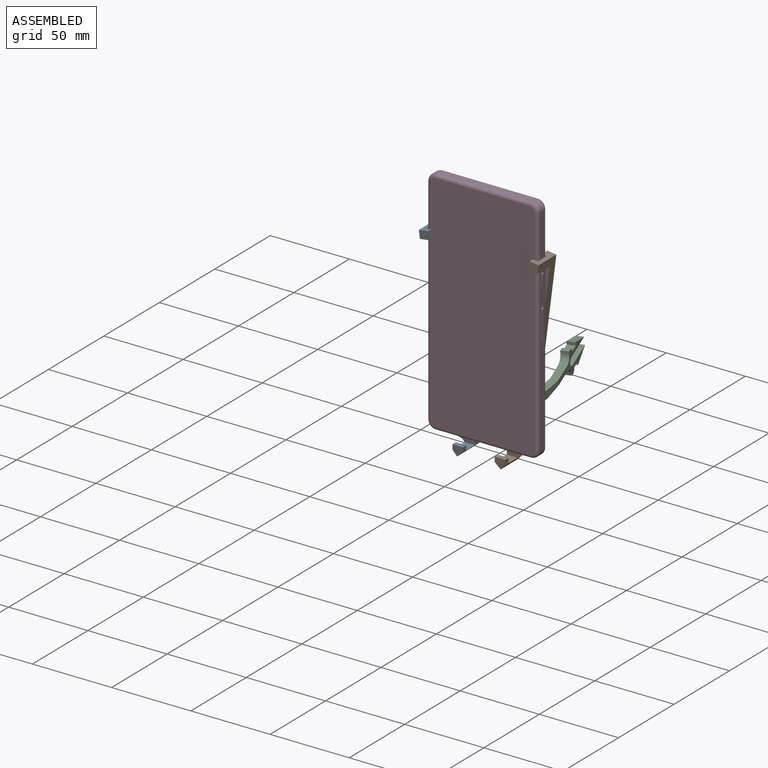
[diagram: assembled view]
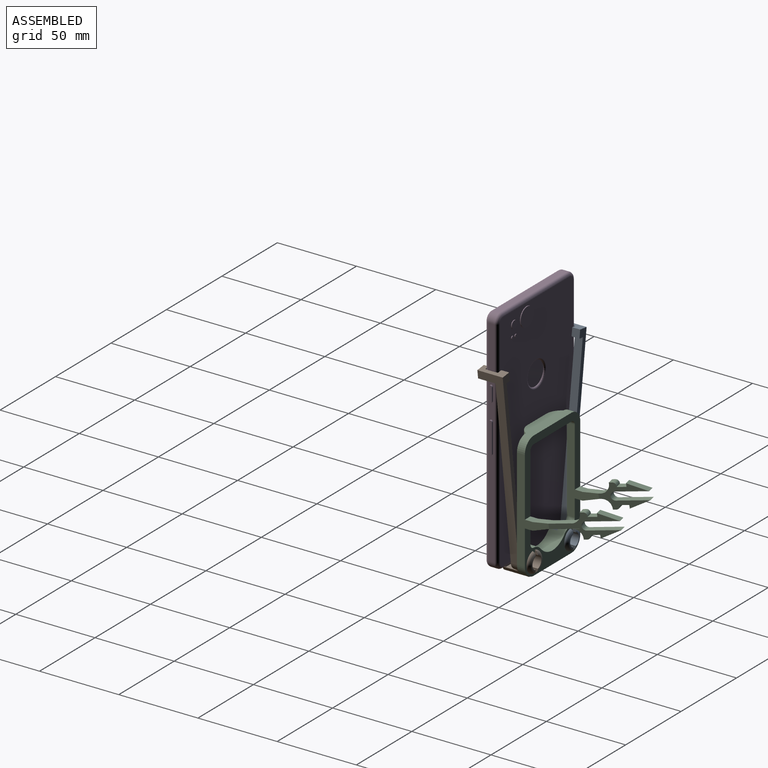
[diagram: assembled view, second angle]
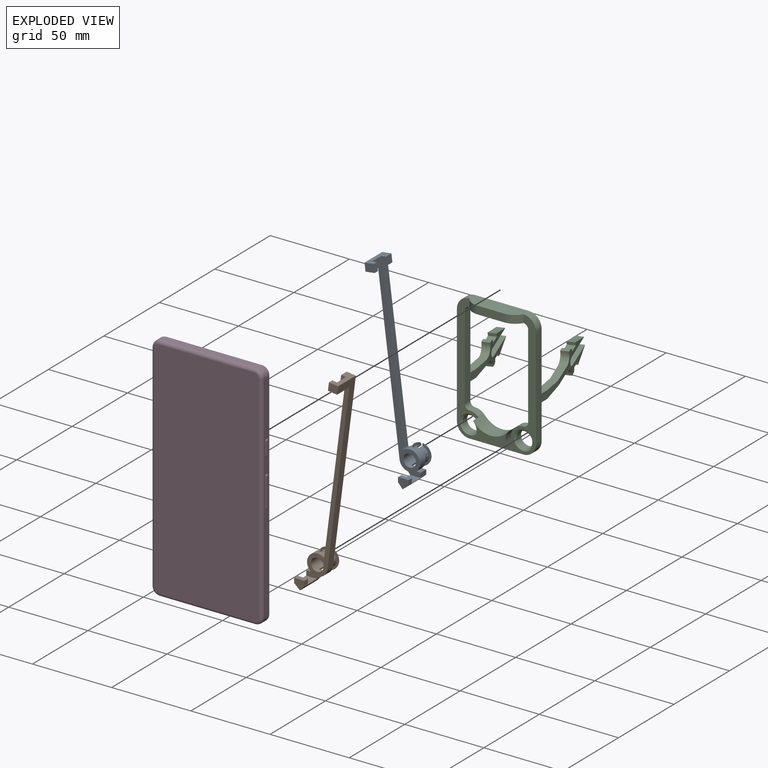
[diagram: exploded view]
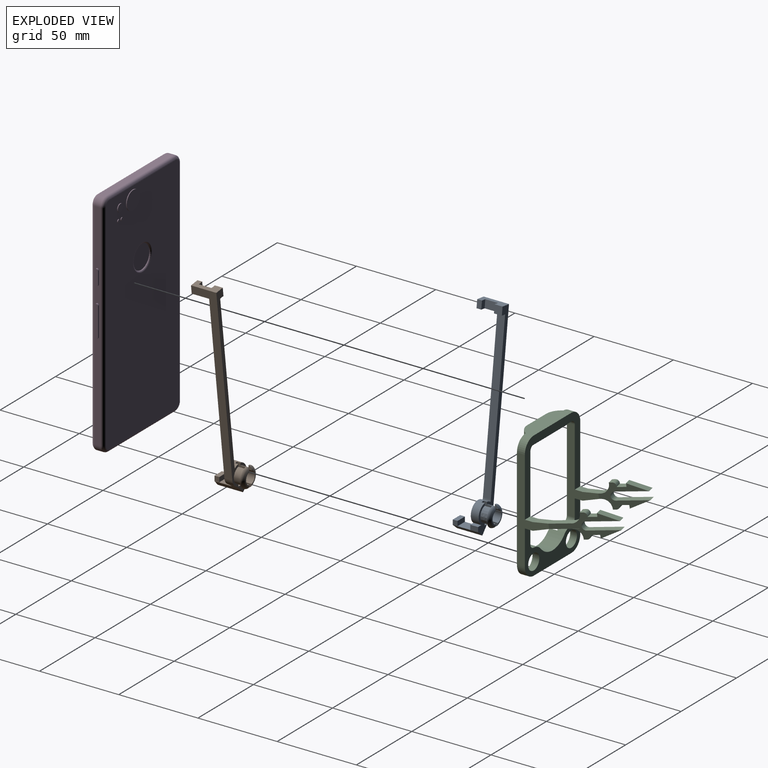
[diagram: exploded view, second angle]
ASSEMBLY  parts=4 mates=3
PART A: 45 faces, bbox 27.9x23x123.7 mm
  f0: plane 7.85x3.05mm, normal (0,1,0), area 0.5mm2, adj f10,f38,f41,f43
  f1: cylinder r=5mm len=5mm, axis (0,-1,0), area 12.9mm2, adj f2,f3,f28,f38
  f2: extruded ~8.66x5mm, area 55.5mm2, adj f1,f3,f28,f41
  f3: plane 12.85x6.2mm, normal (0,-1,0), area 24.1mm2, adj f1,f2,f38,f41,f43
  f4: plane 5x2.63mm, normal (0,0,1), area 13.1mm2, adj f5,f9,f27,f28
  f5: plane 5x3mm, normal (1,0,0), area 15mm2, adj f4,f9,f17,f28
  f6: plane 5x4.96mm, normal (0.99,0,0.13), area 25mm2, adj f7,f21,f28,f33
  f7: plane 5x2.98mm, normal (0.13,0,-0.99), area 15mm2, adj f6,f24,f28,f33
  f8: plane 3x3mm, normal (-1,0,0), area 9mm2, adj f15,f18,f29,f35
  f9: plane 115.04x27.18mm, normal (0,-1,0), area 397mm2, adj f4,f5,f10,f18,f19,f20,f23,f24
  f10: cylinder r=4mm len=12mm, axis (0,-1,0), area 265.2mm2, adj f0,f9,f11,f37,f38,f39,f40,f41
  f11: plane 7.85x3.05mm, normal (0,1,0), area 0.5mm2, adj f10,f37,f40,f44
  f12: cylinder r=5mm len=8.66mm, axis (0,-1,0), area 55.5mm2, adj f13,f14,f28,f37
  f13: extruded ~5x2.29mm, area 12.9mm2, adj f12,f14,f28,f40
  f14: plane 12.85x5.54mm, normal (0,-1,0), area 24.1mm2, adj f12,f13,f37,f40,f44
  f15: plane 6.64x3mm, normal (0,0,1), area 19.9mm2, adj f8,f16,f29,f35
  f16: plane 3x3mm, normal (1,0,0), area 9mm2, adj f15,f17,f29,f35
  f17: plane 16x3.76mm, normal (0.66,0,-0.75), area 80mm2, adj f5,f16,f18,f28,f29,f34
  f18: plane 16x4.87mm, normal (-0.75,0,-0.66), area 80.5mm2, adj f8,f9,f17,f19,f28,f29,f34
  f19: cylinder r=6.5mm len=6.25mm, axis (0,1,0), area 45.1mm2, adj f9,f18,f20,f28
  f20: plane 111.81x16mm, normal (-0.99,0,-0.13), area 618.6mm2, adj f9,f19,f21,f23,f28,f30
  f21: plane 16x5.8mm, normal (-0.13,0,0.99), area 69.5mm2, adj f6,f20,f22,f28,f30,f31,f32,f33
  f22: plane 4.96x3mm, normal (0.99,0,0.13), area 15mm2, adj f21,f23,f30,f32
  f23: plane 11x5.8mm, normal (0.13,0,-0.99), area 40.3mm2, adj f9,f20,f22,f30,f31,f32
  f24: plane 100.64x12.89mm, normal (0.99,0,0.13), area 507.3mm2, adj f7,f9,f25,f28
  f25: cylinder r=5mm len=5mm, axis (0,1,0), area 7.1mm2, adj f9,f24,f26,f28
  f26: cylinder r=6.5mm len=11.39mm, axis (0,1,0), area 96.9mm2, adj f9,f25,f27,f28,f40,f41,f42
  f27: plane 5x0.11mm, normal (0.75,0,0.66), area 0.7mm2, adj f4,f9,f26,f28
  f28: plane 123.67x27.82mm, normal (0,1,0), area 402.8mm2, adj f1,f2,f4,f5,f6,f7,f12,f13
  f29: plane 6.64x6.29mm, normal (0,-1,0), area 30.9mm2, adj f8,f15,f16,f17,f18
  f30: plane 6.43x5.7mm, normal (0,-1,0), area 29.2mm2, adj f20,f21,f22,f23
  f31: plane 8x4.96mm, normal (0.99,0,0.13), area 40mm2, adj f21,f23,f32,f33
  f32: plane 5.34x3.61mm, normal (0,1,0), area 15mm2, adj f21,f22,f23,f31
  f33: plane 5.34x3.61mm, normal (0,-1,0), area 15mm2, adj f6,f7,f21,f31
  f34: plane 8x6.64mm, normal (0,0,1), area 53.2mm2, adj f9,f17,f18,f35
  f35: plane 6.64x3mm, normal (0,1,0), area 19.9mm2, adj f8,f15,f16,f34
  f36: cylinder r=6.5mm len=2mm, axis (0,1,0), area 4mm2, adj f28,f37,f38,f39
  f37: plane 9x2.55mm, normal (1,0,0), area 14.1mm2, adj f10,f11,f12,f14,f28,f36,f39,f44
  f38: plane 9x2.55mm, normal (-1,0,0), area 14.1mm2, adj f0,f1,f3,f10,f28,f36,f39,f43
  f39: plane 2.63x2mm, normal (0,1,0), area 5mm2, adj f10,f36,f37,f38
  f40: plane 9x2.55mm, normal (1,0,0), area 14.1mm2, adj f10,f11,f13,f14,f26,f28,f42,f44
  f41: plane 9x2.55mm, normal (-1,0,0), area 14.1mm2, adj f0,f2,f3,f10,f26,f28,f42,f43
  f42: plane 2.63x2mm, normal (0,1,0), area 5mm2, adj f10,f26,f40,f41
  f43: torus R=4.05mm, axis (0,1,0), area 52.4mm2, adj f0,f3,f38,f41
  f44: torus R=4.05mm, axis (0,1,0), area 52.4mm2, adj f11,f14,f37,f40
PART B: 46 faces, bbox 27.9x23x123.7 mm
  f0: plane 7.85x3.05mm, normal (0,1,0), area 0.5mm2, adj f10,f38,f41,f43
  f1: cylinder r=5mm len=5mm, axis (0,-1,0), area 12.9mm2, adj f2,f3,f28,f38
  f2: extruded ~8.66x5mm, area 55.5mm2, adj f1,f3,f28,f41
  f3: plane 12.85x6.2mm, normal (0,-1,0), area 24.1mm2, adj f1,f2,f38,f41,f43
  f4: plane 5x2.63mm, normal (0,0,1), area 13.1mm2, adj f5,f9,f27,f28
  f5: plane 5x3mm, normal (-1,0,0), area 15mm2, adj f4,f9,f17,f28
  f6: plane 5x4.96mm, normal (-0.99,0,0.13), area 25mm2, adj f7,f21,f28,f33
  f7: plane 5x2.98mm, normal (-0.13,0,-0.99), area 15mm2, adj f6,f24,f28,f33
  f8: plane 3x3mm, normal (1,0,0), area 9mm2, adj f15,f29,f34,f35
  f9: plane 115.04x27.18mm, normal (0,-1,0), area 398mm2, adj f4,f5,f10,f19,f20,f23,f24,f25
  f10: cylinder r=4mm len=12mm, axis (0,-1,0), area 265.2mm2, adj f0,f9,f11,f37,f38,f39,f40,f41
  f11: plane 7.85x3.05mm, normal (0,1,0), area 0.5mm2, adj f10,f37,f40,f44
  f12: cylinder r=5mm len=8.66mm, axis (0,-1,0), area 55.5mm2, adj f13,f14,f28,f37
  f13: extruded ~5x2.29mm, area 12.9mm2, adj f12,f14,f28,f40
  f14: plane 12.85x5.54mm, normal (0,-1,0), area 24.1mm2, adj f12,f13,f37,f40,f44
  f15: plane 6.64x3mm, normal (0,0,1), area 19.9mm2, adj f8,f16,f29,f35
  f16: plane 3x3mm, normal (-1,0,0), area 9mm2, adj f15,f17,f29,f35
  f17: plane 16x3.76mm, normal (-0.66,0,-0.75), area 80mm2, adj f5,f16,f18,f28,f29,f34
  f18: plane 16x1.39mm, normal (0.75,0,-0.66), area 29.5mm2, adj f17,f28,f29,f45
  f19: cylinder r=6.5mm len=5.49mm, axis (0,1,0), area 33.5mm2, adj f9,f20,f28,f45
  f20: plane 111.81x16mm, normal (0.99,0,-0.13), area 618.6mm2, adj f9,f19,f21,f23,f28,f30
  f21: plane 16x5.8mm, normal (0.13,0,0.99), area 69.5mm2, adj f6,f20,f22,f28,f30,f31,f32,f33
  f22: plane 4.96x3mm, normal (-0.99,0,0.13), area 15mm2, adj f21,f23,f30,f32
  f23: plane 11x5.8mm, normal (-0.13,0,-0.99), area 40.3mm2, adj f9,f20,f22,f30,f31,f32
  f24: plane 100.64x12.89mm, normal (-0.99,0,0.13), area 507.3mm2, adj f7,f9,f25,f28
  f25: cylinder r=5mm len=5mm, axis (0,1,0), area 7.1mm2, adj f9,f24,f26,f28
  f26: cylinder r=6.5mm len=11.39mm, axis (0,1,0), area 96.9mm2, adj f9,f25,f27,f28,f40,f41,f42
  f27: plane 5x0.11mm, normal (-0.75,0,0.66), area 0.7mm2, adj f4,f9,f26,f28
  f28: plane 123.67x27.82mm, normal (0,1,0), area 404mm2, adj f1,f2,f4,f5,f6,f7,f12,f13
  f29: plane 6.89x6.29mm, normal (0,-1,0), area 31mm2, adj f8,f15,f16,f17,f18,f34,f45
  f30: plane 6.43x5.7mm, normal (0,-1,0), area 29.2mm2, adj f20,f21,f22,f23
  f31: plane 8x4.96mm, normal (-0.99,0,0.13), area 40mm2, adj f21,f23,f32,f33
  f32: plane 5.34x3.61mm, normal (0,1,0), area 15mm2, adj f21,f22,f23,f31
  f33: plane 5.34x3.61mm, normal (0,-1,0), area 15mm2, adj f6,f7,f21,f31
  f34: plane 11x6.89mm, normal (0,0,1), area 55.8mm2, adj f8,f9,f17,f29,f35,f45
  f35: plane 6.64x3mm, normal (0,1,0), area 19.9mm2, adj f8,f15,f16,f34
  f36: cylinder r=6.5mm len=2mm, axis (0,1,0), area 4mm2, adj f28,f37,f38,f39
  f37: plane 9x2.55mm, normal (-1,0,0), area 14.1mm2, adj f10,f11,f12,f14,f28,f36,f39,f44
  f38: plane 9x2.55mm, normal (1,0,0), area 14.1mm2, adj f0,f1,f3,f10,f28,f36,f39,f43
  f39: plane 2.63x2mm, normal (0,1,0), area 5mm2, adj f10,f36,f37,f38
  f40: plane 9x2.55mm, normal (-1,0,0), area 14.1mm2, adj f10,f11,f13,f14,f26,f28,f42,f44
  f41: plane 9x2.55mm, normal (1,0,0), area 14.1mm2, adj f0,f2,f3,f10,f26,f28,f42,f43
  f42: plane 2.63x2mm, normal (0,1,0), area 5mm2, adj f10,f26,f40,f41
  f43: torus R=4.05mm, axis (0,1,0), area 52.4mm2, adj f0,f3,f38,f41
  f44: torus R=4.05mm, axis (0,1,0), area 52.4mm2, adj f11,f14,f37,f40
  f45: cylinder r=20mm len=16mm, axis (0,1,0), area 63.5mm2, adj f9,f18,f19,f28,f29,f34
PART C: 92 faces, bbox 57.1x63.9x80 mm
  f0: plane 13.73x7.93mm, normal (-0.09,0.16,0.98), area 64.7mm2, adj f58,f59,f67,f76
  f1: plane 19.77x9.86mm, normal (0,0.17,-0.98), area 97.2mm2, adj f2,f19,f77,f78
  f2: cylinder r=2.5mm len=5.48mm, axis (-0.97,-0.25,-0.04), area 39mm2, adj f1,f10,f19,f60,f69,f78,f88,f89
  f3: cylinder r=5.5mm len=6.56mm, axis (-0.97,-0.25,-0.04), area 43.2mm2, adj f4,f19,f23,f69,f78
  f4: plane 4.83x1.36mm, normal (0.26,-0.95,-0.17), area 2.5mm2, adj f3,f19,f72,f78
  f5: plane 5.22x3.15mm, normal (0,-0.17,0.98), area 9.7mm2, adj f6,f58,f59,f71
  f6: cylinder r=2mm len=5.24mm, axis (-0.97,-0.25,-0.04), area 15.3mm2, adj f5,f58,f59,f74
  f7: plane 4.83x1.36mm, normal (-0.26,0.95,0.17), area 2.5mm2, adj f8,f19,f73,f78
  f8: plane 6.51x6.25mm, normal (0,-0.17,0.98), area 27.5mm2, adj f7,f9,f19,f78
  f9: plane 4.83x2.19mm, normal (0.26,-0.95,-0.17), area 10mm2, adj f8,f19,f77,f78
  f10: plane 19.77x9.86mm, normal (0,-0.17,0.98), area 97.2mm2, adj f2,f19,f80,f89
  f11: plane 12.16x7.93mm, normal (-0.09,0.49,-0.87), area 64.7mm2, adj f58,f59,f79,f81
  f12: plane 4.83x2.19mm, normal (0.26,-0.95,-0.17), area 10mm2, adj f13,f19,f80,f89
  f13: plane 6.51x6.25mm, normal (0,0.17,-0.98), area 27.5mm2, adj f12,f14,f19,f89
  f14: plane 4.83x1.36mm, normal (-0.26,0.95,0.17), area 2.5mm2, adj f13,f19,f84,f89
  f15: cylinder r=2mm len=5.24mm, axis (-0.97,-0.25,-0.04), area 15.3mm2, adj f16,f58,f59,f83
  f16: plane 5.22x3.15mm, normal (0,0.17,-0.98), area 9.7mm2, adj f15,f58,f59,f86
  f17: plane 4.83x1.36mm, normal (0.26,-0.95,-0.17), area 2.5mm2, adj f18,f19,f85,f89
  f18: cylinder r=5.5mm len=7.46mm, axis (-0.97,-0.25,-0.04), area 43.2mm2, adj f17,f19,f22,f88,f89
  f19: plane 37.72x15.87mm, normal (-0.97,-0.25,-0.04), area 187.2mm2, adj f1,f2,f3,f4,f7,f8,f9,f10
  f20: plane 11.08x5mm, normal (0,-0.17,0.98), area 53.1mm2, adj f29,f35,f53,f59,f70
  f21: plane 5x1.23mm, normal (0,0.17,-0.98), area 3.1mm2, adj f24,f59,f87
  f22: plane 12.32x8.01mm, normal (0,0.17,-0.98), area 59.7mm2, adj f18,f19,f57,f60
  f23: plane 22.17x8.01mm, normal (0,-0.17,0.98), area 109.7mm2, adj f3,f19,f33,f39,f55,f60
  f24: plane 10.37x5mm, normal (0,0.34,-0.94), area 55.2mm2, adj f21,f29,f35,f54
  f25: plane 50x45mm, normal (0,1,0), area 626.4mm2, adj f28,f29,f33,f34,f35,f36,f37,f38
  f26: plane 50x30mm, normal (0,1,0), area 609.7mm2, adj f29,f30,f31,f32,f33,f35,f39,f40
  f27: plane 80x50mm, normal (0,-1,0), area 992.5mm2, adj f28,f29,f30,f31,f32,f33,f34,f35
  f28: cylinder r=8mm len=8mm, axis (0,1,0), area 62.8mm2, adj f25,f27,f29,f47
  f29: plane 64x20.37mm, normal (-1,0,0), area 385.9mm2, adj f20,f24,f25,f26,f27,f28,f30,f53
  f30: cylinder r=8mm len=8mm, axis (0,1,0), area 62.8mm2, adj f26,f27,f29,f31
  f31: plane 34x5mm, normal (0,0,-1), area 170mm2, adj f26,f27,f30,f32
  f32: cylinder r=8mm len=8mm, axis (0,1,0), area 62.8mm2, adj f26,f27,f31,f33
  f33: plane 64x20.37mm, normal (1,0,0), area 385.9mm2, adj f23,f25,f26,f27,f32,f34,f55,f56
  f34: cylinder r=8mm len=8mm, axis (0,1,0), area 62.8mm2, adj f25,f27,f33,f47
  f35: plane 53x20.37mm, normal (1,0,0), area 330.9mm2, adj f20,f24,f25,f26,f27,f36,f48,f53
  f36: cylinder r=3mm len=5mm, axis (0,1,0), area 23.6mm2, adj f25,f27,f35,f37
  f37: plane 34x10mm, normal (0,0,-1), area 314.8mm2, adj f25,f36,f38,f50,f51,f52
  f38: cylinder r=3mm len=5mm, axis (0,1,0), area 23.6mm2, adj f25,f27,f37,f39
  f39: plane 53x20.37mm, normal (-1,0,0), area 330.9mm2, adj f19,f23,f25,f26,f27,f38,f40,f55
  f40: cylinder r=3mm len=5mm, axis (0,1,0), area 23.6mm2, adj f26,f27,f39,f41
  f41: cylinder r=8mm len=5.66mm, axis (0,1,0), area 31.4mm2, adj f26,f27,f40,f42
  f42: plane 10x1.64mm, normal (-0.71,0,0.71), area 23.1mm2, adj f26,f41,f43,f65,f66
  f43: cylinder r=13.73mm len=19.41mm, axis (0,1,0), area 215.6mm2, adj f26,f42,f44,f66
  f44: plane 10x1.64mm, normal (0.71,0,0.71), area 23.1mm2, adj f26,f43,f45,f61,f66
  f45: cylinder r=8mm len=5.66mm, axis (0,1,0), area 31.4mm2, adj f26,f27,f44,f48
  f46: cylinder r=5mm len=10mm, axis (0,1,0), area 125.7mm2, adj f26,f91
  f47: plane 34x10mm, normal (0,0,1), area 314.8mm2, adj f25,f28,f34,f50,f51,f52
  f48: cylinder r=3mm len=5mm, axis (0,1,0), area 23.6mm2, adj f26,f27,f35,f45
  f49: cylinder r=5mm len=10mm, axis (0,1,0), area 125.7mm2, adj f26,f90
  f50: plane 16.68x5mm, normal (0,-1,0), area 83.4mm2, adj f37,f47,f51,f52
  f51: cylinder r=10mm len=8.66mm, axis (0,0,-1), area 52.4mm2, adj f27,f37,f47,f50
  f52: cylinder r=10mm len=8.66mm, axis (0,0,-1), area 52.4mm2, adj f27,f37,f47,f50
  f53: plane 5x5mm, normal (0,0,1), area 25mm2, adj f20,f25,f29,f35
  f54: plane 5x5mm, normal (0,0,-1), area 25mm2, adj f24,f26,f29,f35
  f55: plane 5x5mm, normal (0,0,1), area 25mm2, adj f23,f25,f33,f39
  f56: plane 5x5mm, normal (0,0,-1), area 25mm2, adj f26,f33,f39,f57
  f57: plane 10.37x5mm, normal (0,0.34,-0.94), area 55.2mm2, adj f22,f33,f39,f56
  f58: plane 26.64x15.87mm, normal (-0.97,-0.25,-0.04), area 152.3mm2, adj f0,f5,f6,f11,f15,f16,f29,f67
  f59: plane 27.92x15.89mm, normal (0.97,0.25,0.04), area 156.2mm2, adj f0,f5,f6,f11,f15,f16,f20,f21
  f60: plane 18.4x6.11mm, normal (0.97,0.25,0.04), area 55.3mm2, adj f2,f22,f23,f33,f69,f88
  f61: cylinder r=8mm len=6.4mm, axis (0,1,0), area 35.1mm2, adj f27,f44,f62,f66
  f62: plane 5.4x5mm, normal (-0.24,0,-0.97), area 27.8mm2, adj f27,f61,f63,f66
  f63: cylinder r=15mm len=7.28mm, axis (0,1,0), area 36.7mm2, adj f27,f62,f64,f66
  f64: plane 5.4x5mm, normal (0.24,0,-0.97), area 27.8mm2, adj f27,f63,f65,f66
  f65: cylinder r=8mm len=6.4mm, axis (0,1,0), area 35.1mm2, adj f27,f42,f64,f66
  f66: plane 22.69x8.2mm, normal (0,-1,0), area 54.5mm2, adj f42,f43,f44,f61,f62,f63,f64,f65
  f67: plane 19.77x9.75mm, normal (0,0.17,-0.98), area 95.9mm2, adj f0,f58,f59,f68
  f68: cylinder r=2.5mm len=5.36mm, axis (-0.97,-0.25,-0.04), area 38.3mm2, adj f58,f59,f67,f79
  f69: plane 5.57x1.6mm, normal (0,0.17,-0.98), area 0.6mm2, adj f2,f3,f60,f78
  f70: cylinder r=5.5mm len=6.56mm, axis (-0.97,-0.25,-0.04), area 41.9mm2, adj f20,f58,f59,f71
  f71: plane 4.7x1.33mm, normal (0.26,-0.95,-0.17), area 2.4mm2, adj f5,f58,f59,f70
  f72: plane 5.35x3.18mm, normal (0,-0.17,0.98), area 10mm2, adj f4,f19,f73,f78
  f73: cylinder r=2mm len=5.35mm, axis (-0.97,-0.25,-0.04), area 15.7mm2, adj f7,f19,f72,f78
  f74: plane 4.72x1.33mm, normal (-0.26,0.95,0.17), area 2.4mm2, adj f6,f58,f59,f75
  f75: plane 6.49x6.15mm, normal (0,-0.17,0.98), area 27mm2, adj f58,f59,f74,f76
  f76: plane 4.75x2.19mm, normal (0.26,-0.95,-0.17), area 9.8mm2, adj f0,f58,f59,f75
  f77: plane 13.73x8.01mm, normal (-0.09,0.16,0.98), area 65.4mm2, adj f1,f9,f19,f78
  f78: plane 25.77x7.93mm, normal (0.97,0.25,0.04), area 67.9mm2, adj f1,f2,f3,f4,f7,f8,f9,f69
  f79: plane 19.77x9.75mm, normal (0,-0.17,0.98), area 95.9mm2, adj f11,f58,f59,f68
  f80: plane 12.17x8.01mm, normal (-0.09,0.49,-0.87), area 65.4mm2, adj f10,f12,f19,f89
  f81: plane 4.75x2.19mm, normal (0.26,-0.95,-0.17), area 9.8mm2, adj f11,f58,f59,f82
  f82: plane 6.49x6.15mm, normal (0,0.17,-0.98), area 27mm2, adj f58,f59,f81,f83
  f83: plane 4.72x1.33mm, normal (-0.26,0.95,0.17), area 2.4mm2, adj f15,f58,f59,f82
  f84: cylinder r=2mm len=5.35mm, axis (-0.97,-0.25,-0.04), area 15.7mm2, adj f14,f19,f85,f89
  f85: plane 5.35x3.18mm, normal (0,0.17,-0.98), area 10mm2, adj f17,f19,f84,f89
  f86: plane 4.7x1.33mm, normal (0.26,-0.95,-0.17), area 2.4mm2, adj f16,f58,f59,f87
  f87: cylinder r=5.5mm len=7.43mm, axis (-0.97,-0.25,-0.04), area 41.9mm2, adj f21,f58,f59,f86
  f88: plane 5.57x1.6mm, normal (0,-0.17,0.98), area 0.6mm2, adj f2,f18,f60,f89
  f89: plane 26.12x8.58mm, normal (0.97,0.25,0.04), area 67.9mm2, adj f2,f10,f12,f13,f14,f17,f18,f80
  f90: cone r=5mm half-angle=45deg, axis (0,-1,0), area 48.9mm2, adj f27,f49
  f91: cone r=6mm half-angle=45deg, axis (0,-1,0), area 48.9mm2, adj f27,f46
PART D: 51 faces, bbox 71.4x146.8x8.5 mm
  f0: plane 136x4mm, normal (1,0,0), area 485.7mm2, adj f1,f7,f10,f11,f12,f13,f15,f16
  f1: cylinder r=5mm len=5mm, axis (0,0,-1), area 31.4mm2, adj f0,f2,f36,f44
  f2: plane 60x4mm, normal (0,1,0), area 240mm2, adj f1,f3,f38,f46
  f3: cylinder r=5mm len=5mm, axis (0,0,-1), area 31.4mm2, adj f2,f4,f40,f48
  f4: plane 136x4mm, normal (-1,0,0), area 544mm2, adj f3,f5,f42,f50
  f5: cylinder r=5mm len=5mm, axis (0,0,-1), area 31.4mm2, adj f4,f6,f41,f49
  f6: plane 60x4mm, normal (0,-1,0), area 221.4mm2, adj f5,f7,f20,f21,f22,f23,f39,f47
  f7: cylinder r=5mm len=5mm, axis (0,0,-1), area 31.4mm2, adj f0,f6,f37,f45
  f8: plane 142x66mm, normal (0,0,1), area 9364.3mm2, adj f43,f44,f45,f46,f47,f48,f49,f50
  f9: plane 142x66mm, normal (0,0,-1), area 8998.3mm2, adj f26,f27,f29,f31,f33,f35,f36,f37
  f10: cylinder r=1mm len=2mm, axis (-1,0,0), area 3.1mm2, adj f0,f11,f13,f14
  f11: plane 8x1mm, normal (0,0,1), area 8mm2, adj f0,f10,f12,f14
  f12: cylinder r=1mm len=2mm, axis (-1,0,0), area 3.1mm2, adj f0,f11,f13,f14
  f13: plane 8x1mm, normal (0,0,-1), area 8mm2, adj f0,f10,f12,f14
  f14: plane 10x2mm, normal (1,0,0), area 19.1mm2, adj f10,f11,f12,f13
  f15: cylinder r=1mm len=2mm, axis (-1,0,0), area 3.1mm2, adj f0,f16,f18,f19
  f16: plane 18x1mm, normal (0,0,1), area 18mm2, adj f0,f15,f17,f19
  f17: cylinder r=1mm len=2mm, axis (-1,0,0), area 3.1mm2, adj f0,f16,f18,f19
  f18: plane 18x1mm, normal (0,0,-1), area 18mm2, adj f0,f15,f17,f19
  f19: plane 20x2mm, normal (1,0,0), area 39.1mm2, adj f15,f16,f17,f18
  f20: cylinder r=1.2mm len=15mm, axis (0,-1,0), area 56.5mm2, adj f6,f21,f23,f24
  f21: plane 15x5.85mm, normal (0,0,-1), area 87.7mm2, adj f6,f20,f22,f24
  f22: cylinder r=1.2mm len=15mm, axis (0,-1,0), area 56.5mm2, adj f6,f21,f23,f24
  f23: plane 15x5.85mm, normal (0,0,1), area 87.7mm2, adj f6,f20,f22,f24
  f24: plane 8.25x2.4mm, normal (0,-1,0), area 18.6mm2, adj f20,f21,f22,f23
  f25: plane 15x15mm, normal (0,0,-1), area 176.7mm2, adj f26
  f26: torus R=8.5mm, axis (0,0,1), area 77.6mm2, adj f9,f25
  f27: cylinder r=6mm len=12mm, axis (0,0,1), area 18.8mm2, adj f9,f28
  f28: plane 12x12mm, normal (0,0,-1), area 113.1mm2, adj f27
  f29: cylinder r=2.5mm len=5mm, axis (0,0,1), area 7.9mm2, adj f9,f30
  f30: plane 5x5mm, normal (0,0,-1), area 19.6mm2, adj f29
  f31: cylinder r=1mm len=2mm, axis (0,0,1), area 3.1mm2, adj f9,f32
  f32: plane 2x2mm, normal (0,0,-1), area 3.1mm2, adj f31
  f33: cylinder r=1mm len=2mm, axis (0,0,1), area 3.1mm2, adj f9,f34
  f34: plane 2x2mm, normal (0,0,-1), area 3.1mm2, adj f33
  f35: cylinder r=2mm len=136mm, axis (0,1,0), area 427.3mm2, adj f0,f9,f36,f37
  f36: torus R=3mm, axis (0,0,1), area 21.1mm2, adj f1,f9,f35,f38
  f37: torus R=3mm, axis (0,0,1), area 21.1mm2, adj f7,f9,f35,f39
  f38: cylinder r=2mm len=60mm, axis (-1,0,0), area 188.5mm2, adj f2,f9,f36,f40
  f39: cylinder r=2mm len=60mm, axis (1,0,0), area 188.5mm2, adj f6,f9,f37,f41
  f40: torus R=3mm, axis (0,0,1), area 21.1mm2, adj f3,f9,f38,f42
  f41: torus R=3mm, axis (0,0,1), area 21.1mm2, adj f5,f9,f39,f42
  f42: cylinder r=2mm len=136mm, axis (0,-1,0), area 427.3mm2, adj f4,f9,f40,f41
  f43: cylinder r=2mm len=136mm, axis (0,-1,0), area 427.3mm2, adj f0,f8,f44,f45
  f44: torus R=3mm, axis (0,0,1), area 21.1mm2, adj f1,f8,f43,f46
  f45: torus R=3mm, axis (0,0,1), area 21.1mm2, adj f7,f8,f43,f47
  f46: cylinder r=2mm len=60mm, axis (1,0,0), area 188.5mm2, adj f2,f8,f44,f48
  f47: cylinder r=2mm len=60mm, axis (-1,0,0), area 188.5mm2, adj f6,f8,f45,f49
  f48: torus R=3mm, axis (0,0,1), area 21.1mm2, adj f3,f8,f46,f50
  f49: torus R=3mm, axis (0,0,1), area 21.1mm2, adj f5,f8,f47,f50
  f50: cylinder r=2mm len=136mm, axis (0,1,0), area 427.3mm2, adj f4,f8,f48,f49
PLACE A rot(axis=(0,1,0),0deg) t=(46.47,-5.1,-1.12)mm
PLACE B t=(-43.51,-5.1,-1.12)mm
PLACE C t=(1.48,-0.1,1.3)mm fixed
PLACE D rot(axis=(1,0,0),90deg) t=(1.65,-10.1,30.45)mm
MATE revolute A.f1 <-> C.f30  axis (0,-1,0) through (-15.52,-0.1,-40.7)mm
MATE parallel D.f9 <-> C.f50  axis (0,1,0) through (1.48,-10.1,28.8)mm
MATE revolute B.f1 <-> C.f32  axis (0,-1,0) through (18.48,-0.1,-40.7)mm
